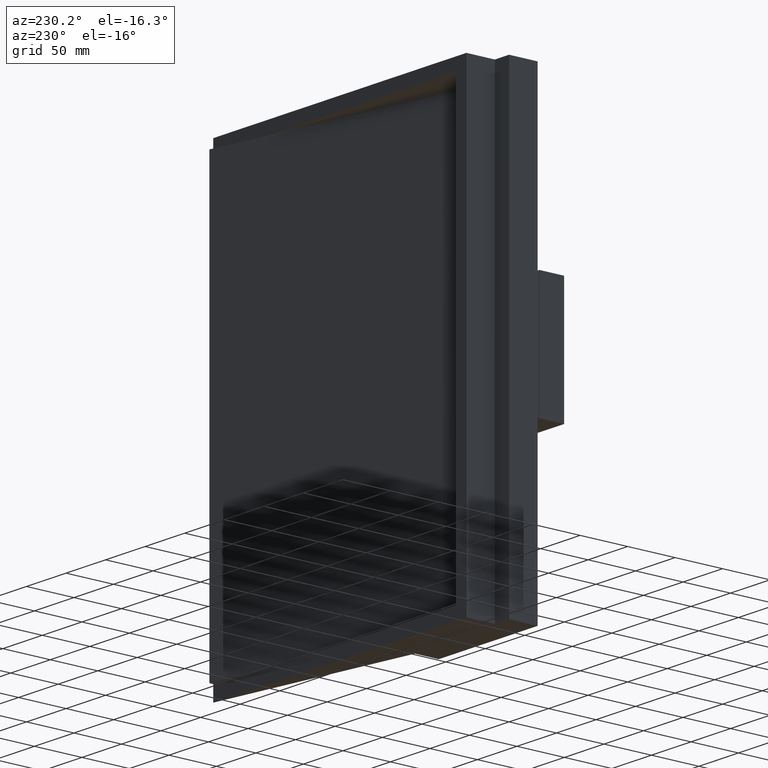
[diagram: clean part render]
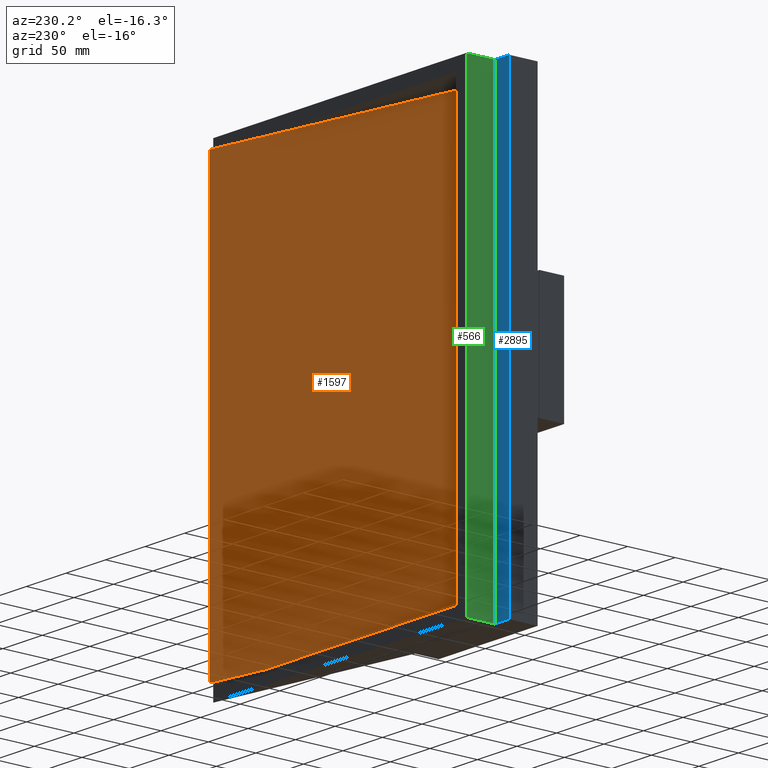
[diagram: same view with three faces highlighted in distinct colors, each labeled with its STEP entity id]
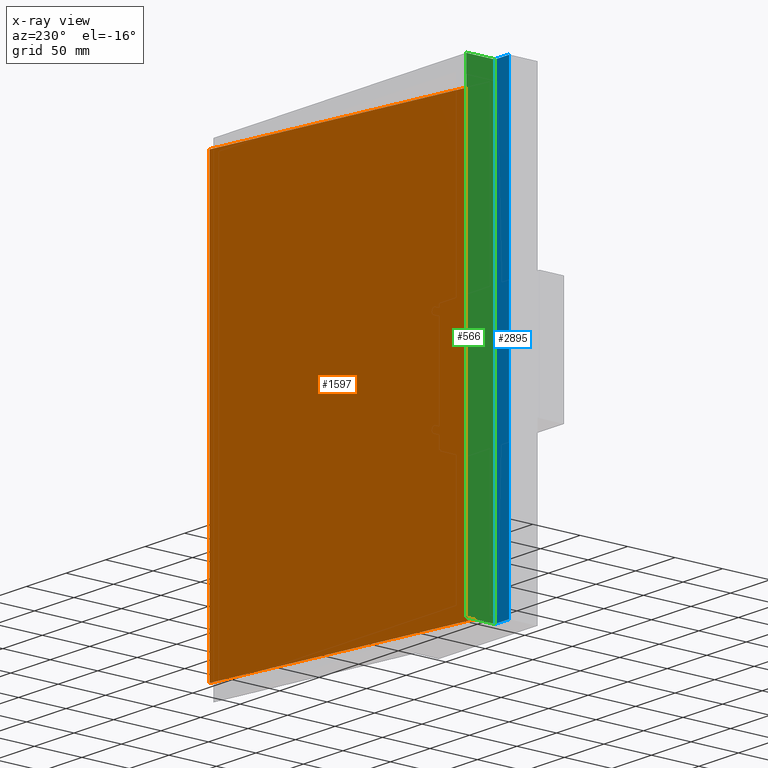
[diagram: x-ray of the same camera — body ghosted, the three highlighted faces saturated]
A machine part, auxiliary view with three faces highlighted in distinct colors.
The next image is the same camera in x-ray (body ghosted, the three faces saturated) — at least one of them is partly hidden behind the body in this view.
Their STEP definitions:

[orange] entity #1597 — the highlighted planar face has unit normal (0.1671, -0.9859, 0).
#27 = EDGE_CURVE ( 'NONE', #225, #1683, #870, .T. ) ;
#30 = VERTEX_POINT ( 'NONE', #635 ) ;
#144 = CARTESIAN_POINT ( 'NONE',  ( 226.8836175392034400, 10.00000000000000000, -224.9999999999999700 ) ) ;
#150 = EDGE_CURVE ( 'NONE', #1075, #1186, #2469, .T. ) ;
#225 = VERTEX_POINT ( 'NONE', #2885 ) ;
#312 = EDGE_CURVE ( 'NONE', #576, #1075, #698, .T. ) ;
#371 = ORIENTED_EDGE ( 'NONE', *, *, #789, .F. ) ;
#382 = DIRECTION ( 'NONE',  ( -0.0000000000000000000, -0.0000000000000000000, -1.000000000000000000 ) ) ;
#390 = ORIENTED_EDGE ( 'NONE', *, *, #929, .F. ) ;
#416 = CARTESIAN_POINT ( 'NONE',  ( 226.8836175392034400, 10.00000000000000000, 224.9999999999999100 ) ) ;
#470 = CARTESIAN_POINT ( 'NONE',  ( 226.8836175392034400, 10.00000000000000000, 224.9999999999999700 ) ) ;
#543 = ORIENTED_EDGE ( 'NONE', *, *, #27, .T. ) ;
#576 = VERTEX_POINT ( 'NONE', #2248 ) ;
#584 = EDGE_CURVE ( 'NONE', #576, #30, #1649, .T. ) ;
#635 = CARTESIAN_POINT ( 'NONE',  ( 167.8836175392035000, 0.0000000000000000000, -224.9999999999999700 ) ) ;
#698 = LINE ( 'NONE', #858, #2796 ) ;
#724 = ORIENTED_EDGE ( 'NONE', *, *, #150, .T. ) ;
#758 = CARTESIAN_POINT ( 'NONE',  ( 226.8836175392034400, 10.00000000000000000, -224.9999999999999700 ) ) ;
#769 = CARTESIAN_POINT ( 'NONE',  ( 167.8836175392035000, 0.0000000000000000000, 224.9999999999999100 ) ) ;
#787 = DIRECTION ( 'NONE',  ( -0.0000000000000000000, -0.0000000000000000000, 1.000000000000000000 ) ) ;
#789 = EDGE_CURVE ( 'NONE', #225, #1186, #1988, .T. ) ;
#858 = CARTESIAN_POINT ( 'NONE',  ( -68.11638246079657200, -40.00000000000005700, -542.1381265149110500 ) ) ;
#870 = LINE ( 'NONE', #894, #1031 ) ;
#894 = CARTESIAN_POINT ( 'NONE',  ( 226.8836175392034400, 10.00000000000000000, 238.0000000000000000 ) ) ;
#929 = EDGE_CURVE ( 'NONE', #30, #1683, #1810, .T. ) ;
#932 = CARTESIAN_POINT ( 'NONE',  ( 226.8836175392034400, 10.00000000000000000, 238.0000000000000000 ) ) ;
#954 = DIRECTION ( 'NONE',  ( 0.9859385576344637000, 0.1671082301075363900, -0.0000000000000000000 ) ) ;
#1031 = VECTOR ( 'NONE', #382, 1000.000000000000000 ) ;
#1075 = VERTEX_POINT ( 'NONE', #1590 ) ;
#1186 = VERTEX_POINT ( 'NONE', #769 ) ;
#1206 = PLANE ( 'NONE',  #1845 ) ;
#1565 = ORIENTED_EDGE ( 'NONE', *, *, #584, .F. ) ;
#1590 = CARTESIAN_POINT ( 'NONE',  ( -68.11638246079654400, -39.99999999999997900, 224.9999999999999700 ) ) ;
#1597 = ADVANCED_FACE ( 'NONE', ( #1656 ), #1206, .F. ) ;
#1619 = CARTESIAN_POINT ( 'NONE',  ( 226.8836175392034400, 10.00000000000000000, -224.9999999999999700 ) ) ;
#1649 = LINE ( 'NONE', #144, #2829 ) ;
#1656 = FACE_OUTER_BOUND ( 'NONE', #2163, .T. ) ;
#1683 = VERTEX_POINT ( 'NONE', #1619 ) ;
#1810 = LINE ( 'NONE', #758, #2884 ) ;
#1845 = AXIS2_PLACEMENT_3D ( 'NONE', #932, #2478, #2287 ) ;
#1866 = ORIENTED_EDGE ( 'NONE', *, *, #312, .T. ) ;
#1895 = DIRECTION ( 'NONE',  ( 0.9859385576344637000, 0.1671082301075363900, 0.0000000000000000000 ) ) ;
#1983 = VECTOR ( 'NONE', #2084, 1000.000000000000000 ) ;
#1988 = LINE ( 'NONE', #416, #1983 ) ;
#2084 = DIRECTION ( 'NONE',  ( -0.9859385576344637000, -0.1671082301075363900, 1.782755191451952100E-016 ) ) ;
#2163 = EDGE_LOOP ( 'NONE', ( #390, #1565, #1866, #724, #371, #543 ) ) ;
#2248 = CARTESIAN_POINT ( 'NONE',  ( -68.11638246079654400, -40.00000000000000000, -225.0000000000000300 ) ) ;
#2287 = DIRECTION ( 'NONE',  ( 0.9859385576344637000, 0.1671082301075363900, 0.0000000000000000000 ) ) ;
#2469 = LINE ( 'NONE', #470, #2620 ) ;
#2478 = DIRECTION ( 'NONE',  ( 0.1671082301075363900, -0.9859385576344637000, 0.0000000000000000000 ) ) ;
#2620 = VECTOR ( 'NONE', #954, 1000.000000000000000 ) ;
#2796 = VECTOR ( 'NONE', #787, 1000.000000000000000 ) ;
#2829 = VECTOR ( 'NONE', #2861, 1000.000000000000100 ) ;
#2861 = DIRECTION ( 'NONE',  ( 0.9859385576344637000, 0.1671082301075364200, 0.0000000000000000000 ) ) ;
#2884 = VECTOR ( 'NONE', #1895, 1000.000000000000000 ) ;
#2885 = CARTESIAN_POINT ( 'NONE',  ( 226.8836175392034400, 10.00000000000000000, 224.9999999999999100 ) ) ;

[blue] entity #2895 — the highlighted planar face has unit normal (0, -1, 0).
#24 = VECTOR ( 'NONE', #2924, 1000.000000000000000 ) ;
#88 = EDGE_CURVE ( 'NONE', #2070, #553, #2019, .T. ) ;
#127 = CARTESIAN_POINT ( 'NONE',  ( -104.1163824607965600, -29.99999999999999300, 238.0000000000000000 ) ) ;
#395 = VERTEX_POINT ( 'NONE', #800 ) ;
#455 = CARTESIAN_POINT ( 'NONE',  ( -104.1163824607965600, -29.99999999999999300, 238.0000000000000000 ) ) ;
#515 = DIRECTION ( 'NONE',  ( -0.0000000000000000000, -0.0000000000000000000, -1.000000000000000000 ) ) ;
#553 = VERTEX_POINT ( 'NONE', #2817 ) ;
#800 = CARTESIAN_POINT ( 'NONE',  ( -86.11638246079655800, -29.99999999999999300, 238.0000000000000000 ) ) ;
#965 = ORIENTED_EDGE ( 'NONE', *, *, #2140, .F. ) ;
#1159 = FACE_OUTER_BOUND ( 'NONE', #2115, .T. ) ;
#1224 = CARTESIAN_POINT ( 'NONE',  ( -104.1163824607965600, -29.99999999999999300, -238.0000000000000000 ) ) ;
#1249 = ORIENTED_EDGE ( 'NONE', *, *, #2605, .T. ) ;
#1562 = ORIENTED_EDGE ( 'NONE', *, *, #2303, .T. ) ;
#1643 = DIRECTION ( 'NONE',  ( -1.000000000000000000, -0.0000000000000000000, -0.0000000000000000000 ) ) ;
#1645 = CARTESIAN_POINT ( 'NONE',  ( -104.1163824607965600, -29.99999999999999300, 238.0000000000000000 ) ) ;
#1919 = CARTESIAN_POINT ( 'NONE',  ( -86.11638246079655800, -29.99999999999999300, -238.0000000000000000 ) ) ;
#1920 = PLANE ( 'NONE',  #2789 ) ;
#1921 = VERTEX_POINT ( 'NONE', #1919 ) ;
#1931 = CARTESIAN_POINT ( 'NONE',  ( -86.11638246079655800, -29.99999999999999300, 238.0000000000000000 ) ) ;
#2019 = LINE ( 'NONE', #455, #2254 ) ;
#2070 = VERTEX_POINT ( 'NONE', #2112 ) ;
#2078 = DIRECTION ( 'NONE',  ( 0.0000000000000000000, -1.000000000000000000, 0.0000000000000000000 ) ) ;
#2101 = VECTOR ( 'NONE', #2923, 1000.000000000000000 ) ;
#2112 = CARTESIAN_POINT ( 'NONE',  ( -104.1163824607965600, -29.99999999999999300, 238.0000000000000000 ) ) ;
#2115 = EDGE_LOOP ( 'NONE', ( #1249, #2714, #965, #1562 ) ) ;
#2140 = EDGE_CURVE ( 'NONE', #395, #2070, #2279, .T. ) ;
#2254 = VECTOR ( 'NONE', #515, 1000.000000000000000 ) ;
#2279 = LINE ( 'NONE', #127, #2101 ) ;
#2303 = EDGE_CURVE ( 'NONE', #395, #1921, #2676, .T. ) ;
#2319 = VECTOR ( 'NONE', #1643, 1000.000000000000000 ) ;
#2605 = EDGE_CURVE ( 'NONE', #1921, #553, #2749, .T. ) ;
#2665 = DIRECTION ( 'NONE',  ( 0.0000000000000000000, -0.0000000000000000000, -1.000000000000000000 ) ) ;
#2676 = LINE ( 'NONE', #1931, #24 ) ;
#2714 = ORIENTED_EDGE ( 'NONE', *, *, #88, .F. ) ;
#2749 = LINE ( 'NONE', #1224, #2319 ) ;
#2789 = AXIS2_PLACEMENT_3D ( 'NONE', #1645, #2078, #2665 ) ;
#2817 = CARTESIAN_POINT ( 'NONE',  ( -104.1163824607965600, -29.99999999999999300, -238.0000000000000000 ) ) ;
#2895 = ADVANCED_FACE ( 'NONE', ( #1159 ), #1920, .F. ) ;
#2923 = DIRECTION ( 'NONE',  ( -1.000000000000000000, -0.0000000000000000000, -0.0000000000000000000 ) ) ;
#2924 = DIRECTION ( 'NONE',  ( -0.0000000000000000000, -0.0000000000000000000, -1.000000000000000000 ) ) ;

[green] entity #566 — the highlighted planar face has unit normal (1, 0, 0).
#24 = VECTOR ( 'NONE', #2924, 1000.000000000000000 ) ;
#45 = LINE ( 'NONE', #2520, #2185 ) ;
#180 = ORIENTED_EDGE ( 'NONE', *, *, #590, .T. ) ;
#304 = LINE ( 'NONE', #1865, #2223 ) ;
#395 = VERTEX_POINT ( 'NONE', #800 ) ;
#407 = ORIENTED_EDGE ( 'NONE', *, *, #2726, .T. ) ;
#566 = ADVANCED_FACE ( 'NONE', ( #2914 ), #2381, .F. ) ;
#590 = EDGE_CURVE ( 'NONE', #2904, #611, #45, .T. ) ;
#602 = ORIENTED_EDGE ( 'NONE', *, *, #2663, .F. ) ;
#611 = VERTEX_POINT ( 'NONE', #1282 ) ;
#800 = CARTESIAN_POINT ( 'NONE',  ( -86.11638246079655800, -29.99999999999999300, 238.0000000000000000 ) ) ;
#913 = DIRECTION ( 'NONE',  ( 1.000000000000000000, 0.0000000000000000000, 0.0000000000000000000 ) ) ;
#977 = AXIS2_PLACEMENT_3D ( 'NONE', #1059, #913, #2260 ) ;
#1059 = CARTESIAN_POINT ( 'NONE',  ( -86.11638246079655800, -29.99999999999999300, 238.0000000000000000 ) ) ;
#1282 = CARTESIAN_POINT ( 'NONE',  ( -86.11638246079655800, 0.0000000000000000000, -238.0000000000000000 ) ) ;
#1405 = LINE ( 'NONE', #2506, #1940 ) ;
#1603 = ORIENTED_EDGE ( 'NONE', *, *, #2303, .F. ) ;
#1782 = DIRECTION ( 'NONE',  ( -0.0000000000000000000, -1.000000000000000000, -0.0000000000000000000 ) ) ;
#1865 = CARTESIAN_POINT ( 'NONE',  ( -86.11638246079655800, -29.99999999999999300, -238.0000000000000000 ) ) ;
#1919 = CARTESIAN_POINT ( 'NONE',  ( -86.11638246079655800, -29.99999999999999300, -238.0000000000000000 ) ) ;
#1921 = VERTEX_POINT ( 'NONE', #1919 ) ;
#1931 = CARTESIAN_POINT ( 'NONE',  ( -86.11638246079655800, -29.99999999999999300, 238.0000000000000000 ) ) ;
#1940 = VECTOR ( 'NONE', #1782, 1000.000000000000000 ) ;
#2185 = VECTOR ( 'NONE', #2504, 1000.000000000000000 ) ;
#2223 = VECTOR ( 'NONE', #2778, 1000.000000000000000 ) ;
#2260 = DIRECTION ( 'NONE',  ( 0.0000000000000000000, 0.0000000000000000000, -1.000000000000000000 ) ) ;
#2303 = EDGE_CURVE ( 'NONE', #395, #1921, #2676, .T. ) ;
#2381 = PLANE ( 'NONE',  #977 ) ;
#2427 = EDGE_LOOP ( 'NONE', ( #407, #1603, #602, #180 ) ) ;
#2504 = DIRECTION ( 'NONE',  ( -0.0000000000000000000, -0.0000000000000000000, -1.000000000000000000 ) ) ;
#2506 = CARTESIAN_POINT ( 'NONE',  ( -86.11638246079655800, -29.99999999999999300, 238.0000000000000000 ) ) ;
#2520 = CARTESIAN_POINT ( 'NONE',  ( -86.11638246079655800, 0.0000000000000000000, 238.0000000000000000 ) ) ;
#2663 = EDGE_CURVE ( 'NONE', #2904, #395, #1405, .T. ) ;
#2676 = LINE ( 'NONE', #1931, #24 ) ;
#2726 = EDGE_CURVE ( 'NONE', #611, #1921, #304, .T. ) ;
#2778 = DIRECTION ( 'NONE',  ( -0.0000000000000000000, -1.000000000000000000, -0.0000000000000000000 ) ) ;
#2873 = CARTESIAN_POINT ( 'NONE',  ( -86.11638246079655800, 0.0000000000000000000, 238.0000000000000000 ) ) ;
#2904 = VERTEX_POINT ( 'NONE', #2873 ) ;
#2914 = FACE_OUTER_BOUND ( 'NONE', #2427, .T. ) ;
#2924 = DIRECTION ( 'NONE',  ( -0.0000000000000000000, -0.0000000000000000000, -1.000000000000000000 ) ) ;